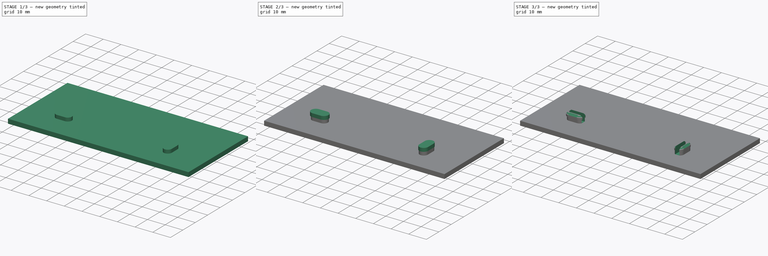
[diagram: build sequence overview — one tinted view per stage of 3, left to right]
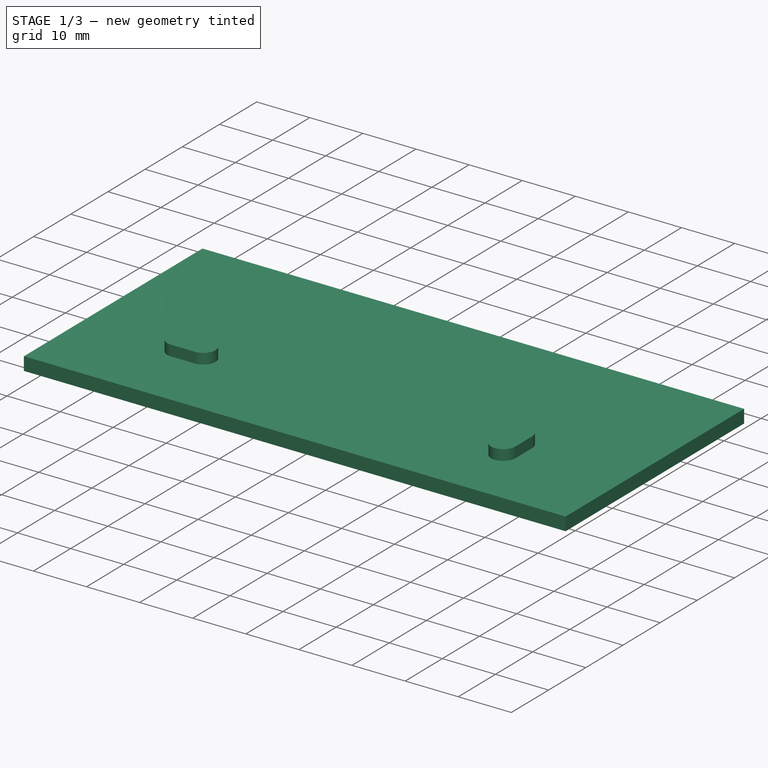
[diagram: stage 1 of 3 — iso view after this stage's code; geometry added in this stage tinted green]
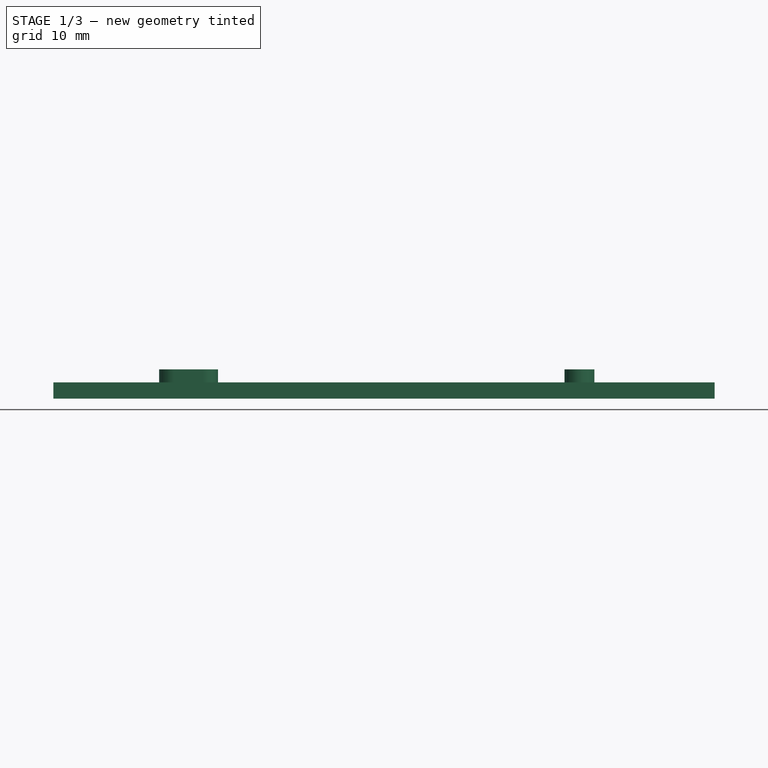
[diagram: stage 1 of 3 — front view after this stage's code; geometry added in this stage tinted green]
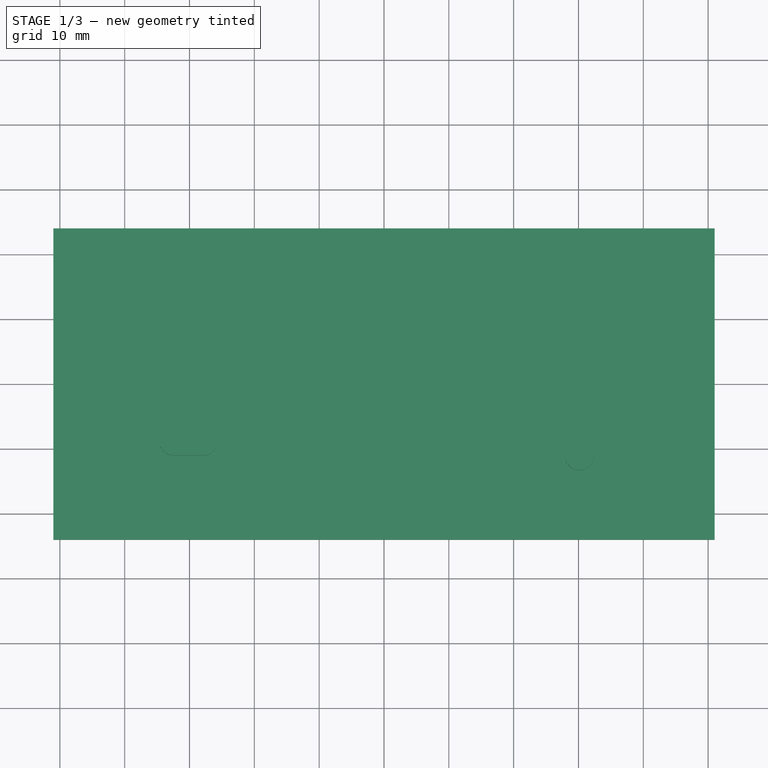
[diagram: stage 1 of 3 — top view after this stage's code; geometry added in this stage tinted green]
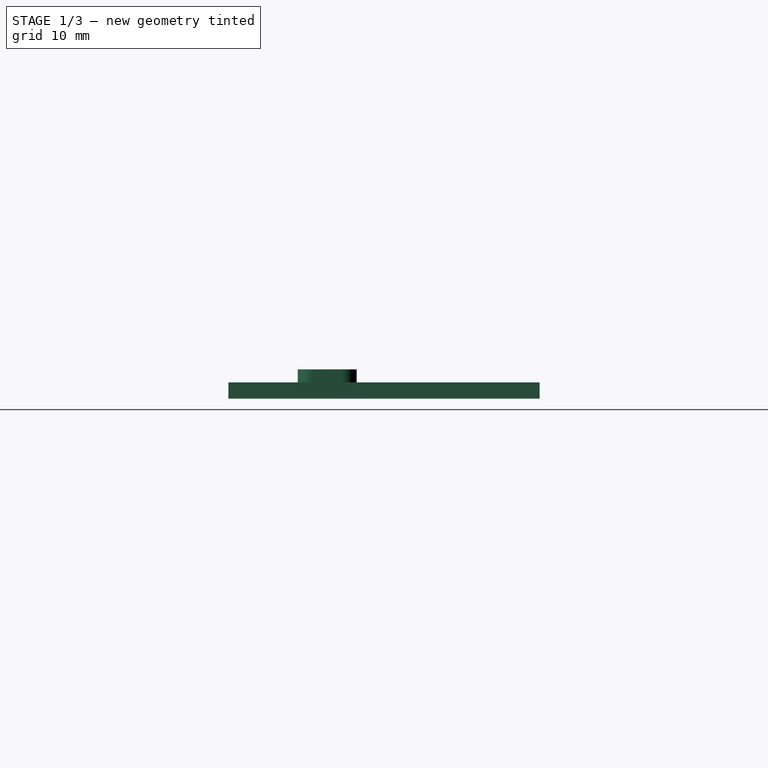
[diagram: stage 1 of 3 — right view after this stage's code; geometry added in this stage tinted green]
FCSTD DOCUMENT  (FreeCAD 1.0R39285 (Git))
Label: VaillantControllerMount
License: All rights reserved
LicenseURL: https://en.wikipedia.org/wiki/All_rights_reserved
objects: Sketcher::SketchObject×5, PartDesign::Pad×3, PartDesign::Pocket×1, PartDesign::Chamfer×1, PartDesign::Body×1
note: 26 computed .brp shape members not serialized (recipe doc carries the construction recipe); baked Part::Feature solids carry a one-line shape summary decoded from their .brp

FEATURE [Sketcher::SketchObject] Sketch
  ArcFitTolerance = 1e-06
  AttachmentSupport = -> [XY_Plane]
  FullyConstrained = true
  MakeInternals = false
  MapMode = 5
  sketch-geometry (5):
    g0: LineSegment StartX=-51 StartY=24 StartZ=0 EndX=-51 EndY=-24 EndZ=0
    g1: LineSegment StartX=-51 StartY=-24 StartZ=0 EndX=51 EndY=-24 EndZ=0
    g2: LineSegment StartX=51 StartY=-24 StartZ=0 EndX=51 EndY=24 EndZ=0
    g3: LineSegment StartX=51 StartY=24 StartZ=0 EndX=-51 EndY=24 EndZ=0
    g4: GeomPoint [constr] X=-1e-16 Y=-1e-16 Z=0
  constraints (12):
    c: Coincident(g0,g1)
    c: Coincident(g1,g2)
    c: Coincident(g2,g3)
    c: Coincident(g3,g0)
    c: Vertical(g0)
    c: Vertical(g2)
    c: Horizontal(g1)
    c: Horizontal(g3)
    c: Symmetric(g2,g0,g4)
    c: Coincident(g4,g-1)
    c: DistanceX(g1,g1) = 102
    c: DistanceY(g2,g2) = 48
FEATURE [PartDesign::Pad] Pad
  Direction = (0,0,1)
  Length = 2.5
  Length2 = 10
  Profile = -> Sketch
  ReferenceAxis = -> Sketch [N_Axis]
  Refine = true
  Suppressed = false
  Type = 0
FEATURE [Sketcher::SketchObject] Sketch001
  ArcFitTolerance = 1e-06
  AttachmentSupport = -> [Pad]
  ExternalGeometry = -> [Pad]
  FullyConstrained = true
  MakeInternals = false
  MapMode = 5
  Placement = pos=(0,0,2.5) rot=(0,0,1;0rad)
  sketch-geometry (11):
    g0: LineSegment [constr] StartX=-51 StartY=-8.75 StartZ=0 EndX=51 EndY=-8.75 EndZ=0
    g1: LineSegment [constr] StartX=-30.15 StartY=24 StartZ=0 EndX=-30.15 EndY=-24 EndZ=0
    g2: LineSegment [constr] StartX=30.15 StartY=24 StartZ=0 EndX=30.15 EndY=-24 EndZ=0
    g3: ArcOfCircle CenterX=-32.395 CenterY=-8.75 CenterZ=0 NormalX=0 NormalY=0 NormalZ=1 AngleXU=0 Radius=2.3 StartAngle=1.5708 EndAngle=4.71239
    g4: ArcOfCircle CenterX=-27.905 CenterY=-8.75 CenterZ=0 NormalX=0 NormalY=0 NormalZ=1 AngleXU=0 Radius=2.3 StartAngle=4.71239 EndAngle=7.85398
    g5: LineSegment StartX=-32.395 StartY=-6.45 StartZ=0 EndX=-27.905 EndY=-6.45 EndZ=0
    g6: LineSegment StartX=-32.395 StartY=-11.05 StartZ=0 EndX=-27.905 EndY=-11.05 EndZ=0
    g7: ArcOfCircle CenterX=30.15 CenterY=-6.505 CenterZ=0 NormalX=0 NormalY=0 NormalZ=1 AngleXU=0 Radius=2.3 StartAngle=1e-16 EndAngle=3.14159
    g8: ArcOfCircle CenterX=30.15 CenterY=-10.995 CenterZ=0 NormalX=0 NormalY=0 NormalZ=1 AngleXU=0 Radius=2.3 StartAngle=3.14159 EndAngle=6.28319
    g9: LineSegment StartX=32.45 StartY=-6.505 StartZ=0 EndX=32.45 EndY=-10.995 EndZ=0
    g10: LineSegment StartX=27.85 StartY=-6.505 StartZ=0 EndX=27.85 EndY=-10.995 EndZ=0
  constraints (30):
    c: Horizontal(g0)
    c: PointOnObject(g0,g-5)
    c: PointOnObject(g0,g-3)
    c: Vertical(g1)
    c: Vertical(g2)
    c: PointOnObject(g1,g-6)
    c: PointOnObject(g2,g-6)
    c: PointOnObject(g2,g-4)
    c: PointOnObject(g1,g-4)
    c: DistanceY(g-4,g0) = 15.25
    c: DistanceX(g-4,g1) = 20.85
    c: DistanceX(g2,g-5) = 20.85
    c: Tangent(g3,g5) = 1.5708
    c: Tangent(g3,g6) = -1.5708
    c: Tangent(g4,g5) = 1.5708
    c: Tangent(g4,g6) = -1.5708
    c: Equal(g3,g4)
    c: Distance(g3,g4) = 4.49
    c: Radius(g3) = 2.3
    c: PointOnObject(g3,g0)
    c: Symmetric(g3,g4,g1)
    c: Tangent(g7,g9) = 1.5708
    c: Tangent(g7,g10) = -1.5708
    c: Tangent(g8,g9) = 1.5708
    c: Tangent(g8,g10) = -1.5708
    c: Equal(g7,g8)
    c: Distance(g7,g8) = 4.49
    c: Radius(g7) = 2.3
    c: PointOnObject(g7,g2)
    c: Symmetric(g7,g8,g0)
FEATURE [PartDesign::Pad] Pad001
  BaseFeature = -> Pad
  Direction = (0,0,1)
  Length = 2
  Length2 = 10
  Profile = -> Sketch001
  ReferenceAxis = -> Sketch001 [N_Axis]
  Refine = true
  Suppressed = false
  Type = 0
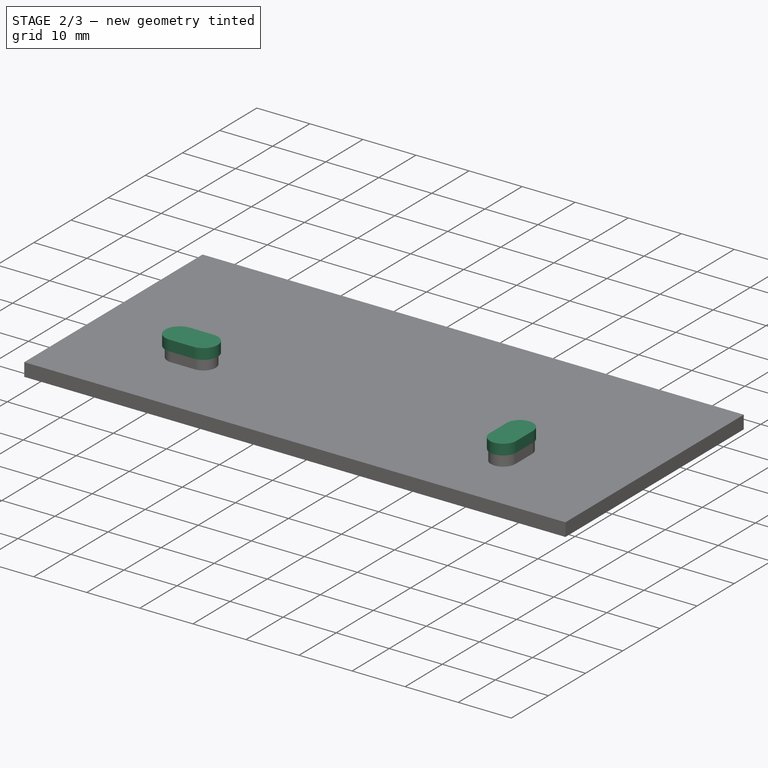
[diagram: stage 2 of 3 — iso view after this stage's code; geometry added in this stage tinted green]
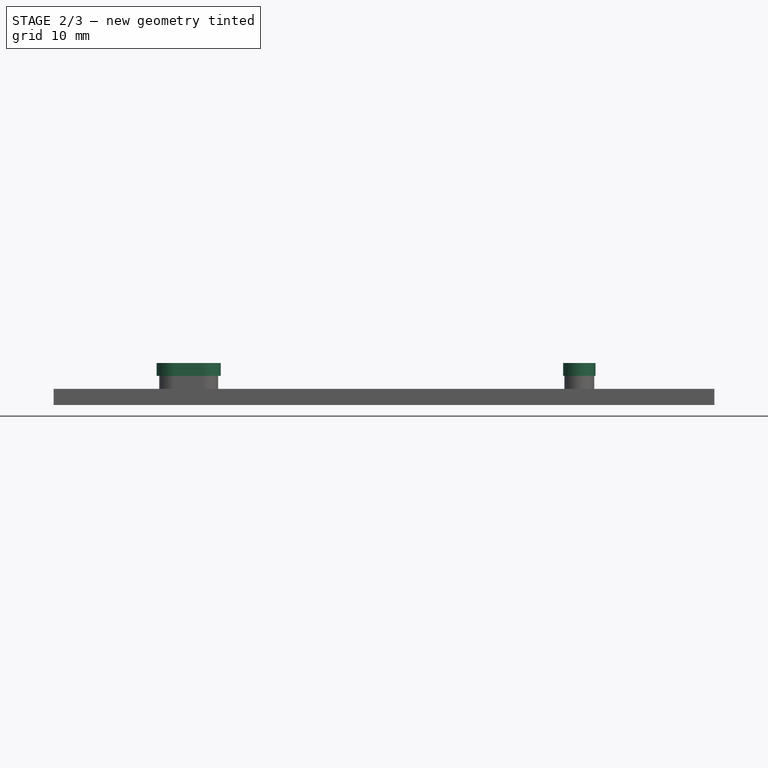
[diagram: stage 2 of 3 — front view after this stage's code; geometry added in this stage tinted green]
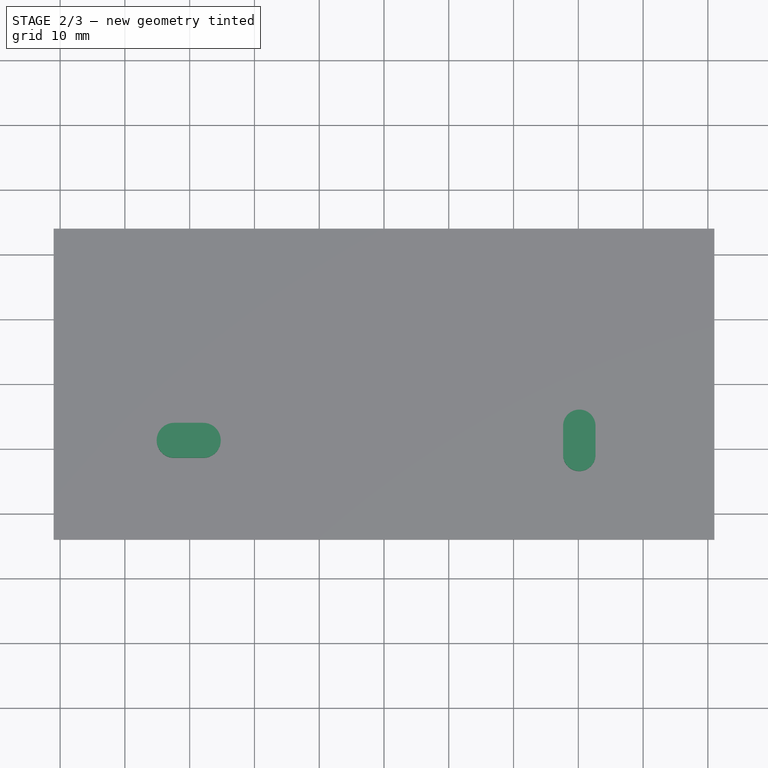
[diagram: stage 2 of 3 — top view after this stage's code; geometry added in this stage tinted green]
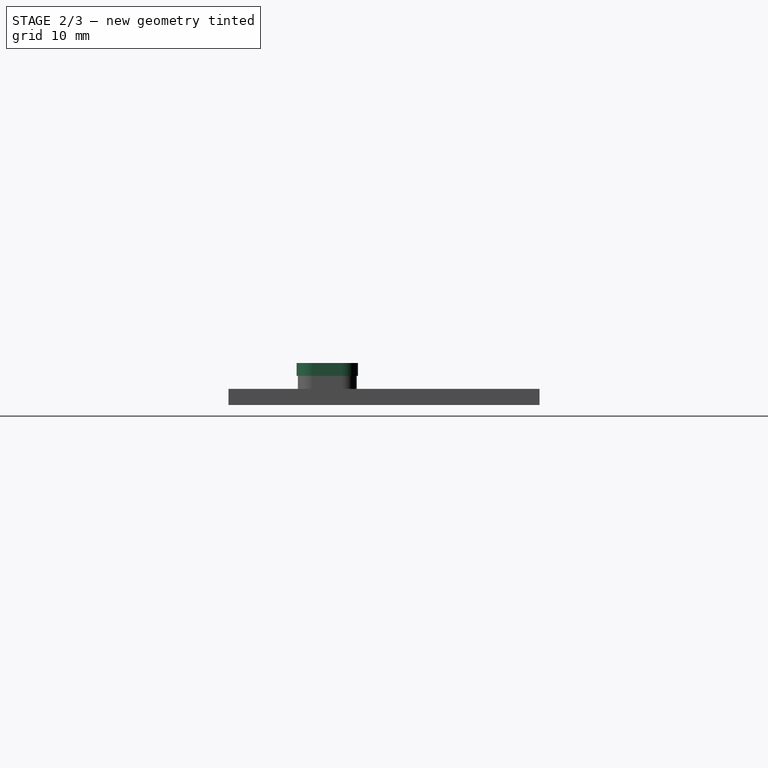
[diagram: stage 2 of 3 — right view after this stage's code; geometry added in this stage tinted green]
FEATURE [Sketcher::SketchObject] Sketch002
  ArcFitTolerance = 1e-06
  AttachmentSupport = -> [Pad001]
  ExternalGeometry = -> [Pad001]
  FullyConstrained = false
  MakeInternals = false
  MapMode = 5
  Placement = pos=(0,0,4.5) rot=(0,0,1;0rad)
  sketch-geometry (8):
    g0: ArcOfCircle CenterX=-32.395 CenterY=-8.75 CenterZ=0 NormalX=0 NormalY=0 NormalZ=1 AngleXU=0 Radius=2.7012 StartAngle=1.5708 EndAngle=4.71239
    g1: ArcOfCircle CenterX=-27.905 CenterY=-8.75 CenterZ=0 NormalX=0 NormalY=0 NormalZ=1 AngleXU=0 Radius=2.7012 StartAngle=4.71239 EndAngle=7.85398
    g2: LineSegment StartX=-32.395 StartY=-6.0488 StartZ=0 EndX=-27.905 EndY=-6.0488 EndZ=0
    g3: LineSegment StartX=-32.395 StartY=-11.4512 StartZ=0 EndX=-27.905 EndY=-11.4512 EndZ=0
    g4: ArcOfCircle CenterX=30.15 CenterY=-6.505 CenterZ=0 NormalX=0 NormalY=0 NormalZ=1 AngleXU=0 Radius=2.5 StartAngle=0 EndAngle=3.14159
    g5: ArcOfCircle CenterX=30.15 CenterY=-10.995 CenterZ=0 NormalX=0 NormalY=0 NormalZ=1 AngleXU=0 Radius=2.5 StartAngle=3.14159 EndAngle=6.28319
    g6: LineSegment StartX=32.65 StartY=-6.505 StartZ=0 EndX=32.65 EndY=-10.995 EndZ=0
    g7: LineSegment StartX=27.65 StartY=-6.505 StartZ=0 EndX=27.65 EndY=-10.995 EndZ=0
  constraints (14):
    c: Tangent(g0,g2) = 1.5708
    c: Tangent(g0,g3) = -1.5708
    c: Tangent(g1,g2) = 1.5708
    c: Tangent(g1,g3) = -1.5708
    c: Equal(g0,g1)
    c: Coincident(g0,g-4)
    c: Coincident(g1,g-6)
    c: Tangent(g4,g6) = 1.5708
    c: Tangent(g4,g7) = -1.5708
    c: Tangent(g5,g6) = 1.5708
    c: Tangent(g5,g7) = -1.5708
    c: Equal(g4,g5)
    c: Coincident(g4,g-8)
    c: Coincident(g5,g-10)
FEATURE [PartDesign::Pad] Pad002
  BaseFeature = -> Pad001
  Direction = (0,0,1)
  Length = 2
  Length2 = 10
  Profile = -> Sketch002
  ReferenceAxis = -> Sketch002 [N_Axis]
  Refine = true
  Suppressed = false
  Type = 0
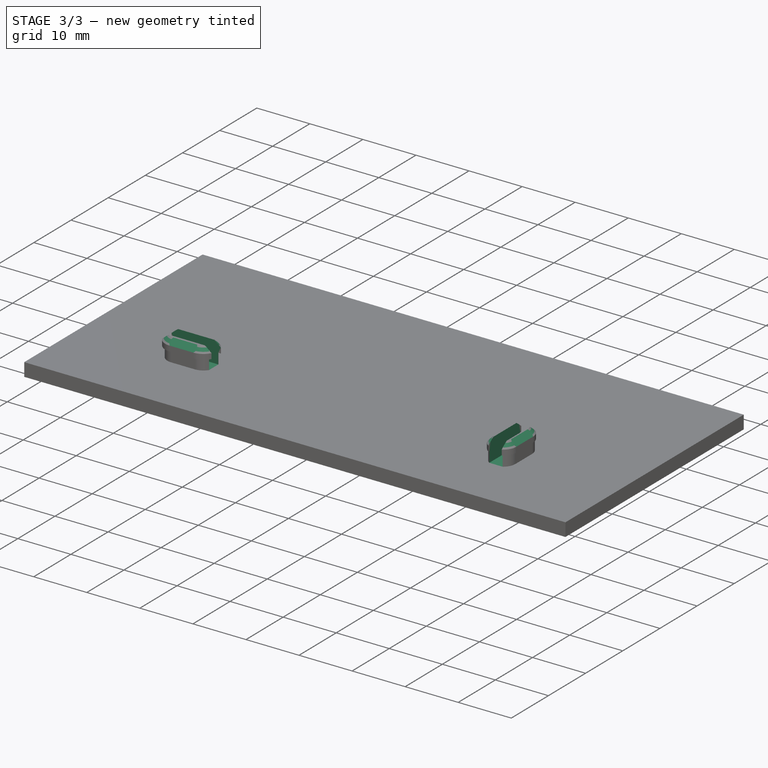
[diagram: stage 3 of 3 — iso view after this stage's code; geometry added in this stage tinted green]
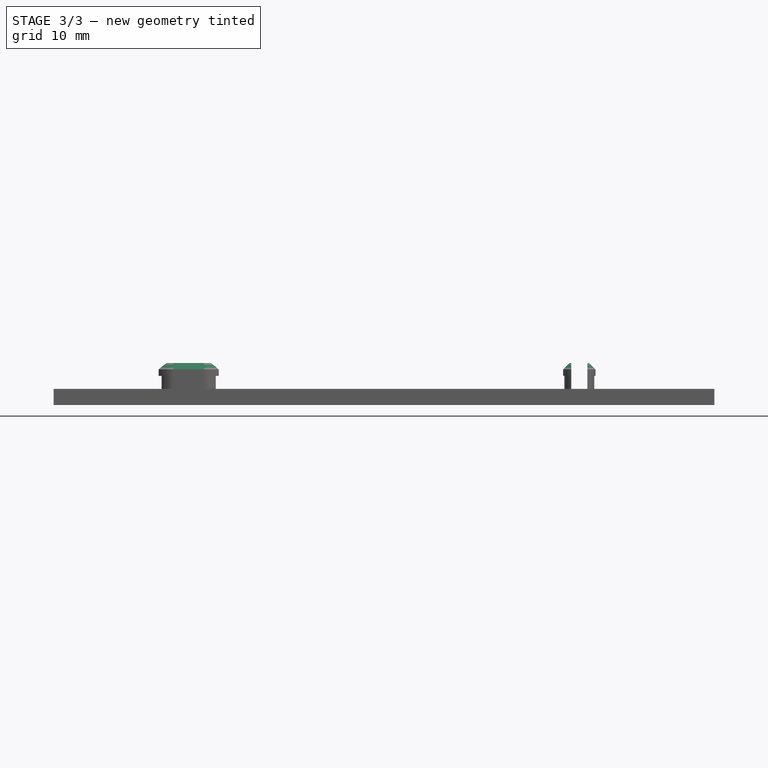
[diagram: stage 3 of 3 — front view after this stage's code; geometry added in this stage tinted green]
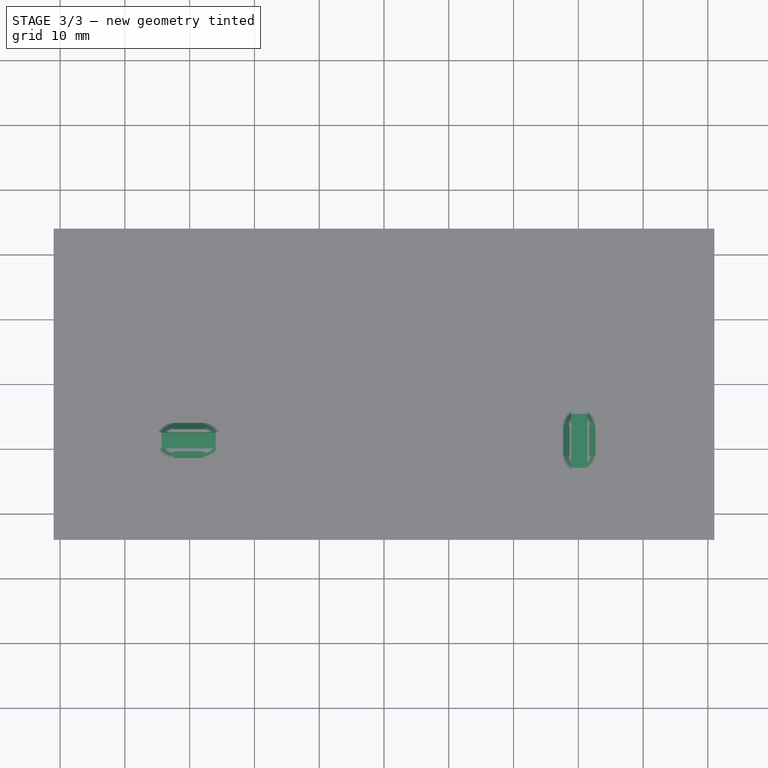
[diagram: stage 3 of 3 — top view after this stage's code; geometry added in this stage tinted green]
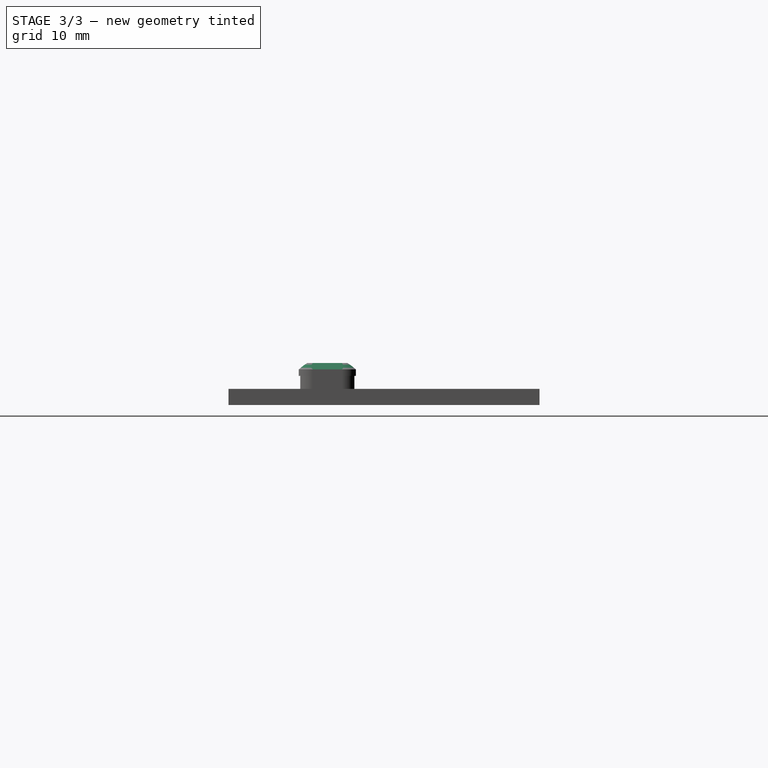
[diagram: stage 3 of 3 — right view after this stage's code; geometry added in this stage tinted green]
FEATURE [Sketcher::SketchObject] Sketch003
  ArcFitTolerance = 1e-06
  AttachmentSupport = -> [Pad002]
  FullyConstrained = true
  MakeInternals = false
  MapMode = 5
  Placement = pos=(0,0,6.5) rot=(0,0,1;0rad)
FEATURE [Sketcher::SketchObject] Sketch004
  ArcFitTolerance = 1e-06
  AttachmentSupport = -> [Pad002]
  ExternalGeometry = -> [Pad002]
  FullyConstrained = true
  MakeInternals = false
  MapMode = 5
  Placement = pos=(0,0,6.5) rot=(0,0,1;0rad)
  sketch-geometry (14):
    g0: LineSegment [constr] StartX=-32.395 StartY=-6.0488 StartZ=0 EndX=-27.905 EndY=-11.4512 EndZ=0
    g1: LineSegment [constr] StartX=-32.395 StartY=-11.4512 StartZ=0 EndX=-27.905 EndY=-6.0488 EndZ=0
    g2: LineSegment StartX=-35.15 StartY=-7.5 StartZ=0 EndX=-35.15 EndY=-10 EndZ=0
    g3: LineSegment StartX=-35.15 StartY=-10 StartZ=0 EndX=-25.15 EndY=-10 EndZ=0
    g4: LineSegment StartX=-25.15 StartY=-10 StartZ=0 EndX=-25.15 EndY=-7.5 EndZ=0
    g5: LineSegment StartX=-25.15 StartY=-7.5 StartZ=0 EndX=-35.15 EndY=-7.5 EndZ=0
    g6: GeomPoint [constr] X=-30.15 Y=-8.75 Z=0
    g7: LineSegment [constr] StartX=27.65 StartY=-6.505 StartZ=0 EndX=32.65 EndY=-10.995 EndZ=0
    g8: LineSegment [constr] StartX=32.65 StartY=-6.505 StartZ=0 EndX=27.65 EndY=-10.995 EndZ=0
    g9: LineSegment StartX=28.9 StartY=-3.75 StartZ=0 EndX=28.9 EndY=-13.75 EndZ=0
    g10: LineSegment StartX=28.9 StartY=-13.75 StartZ=0 EndX=31.4 EndY=-13.75 EndZ=0
    g11: LineSegment StartX=31.4 StartY=-13.75 StartZ=0 EndX=31.4 EndY=-3.75 EndZ=0
    g12: LineSegment StartX=31.4 StartY=-3.75 StartZ=0 EndX=28.9 EndY=-3.75 EndZ=0
    g13: GeomPoint [constr] X=30.15 Y=-8.75 Z=0
  constraints (32):
    c: Coincident(g0,g-4)
    c: Coincident(g0,g-6)
    c: Coincident(g1,g-5)
    c: Coincident(g1,g-6)
    c: Coincident(g2,g3)
    c: Coincident(g3,g4)
    c: Coincident(g4,g5)
    c: Coincident(g5,g2)
    c: Vertical(g2)
    c: Vertical(g4)
    c: Horizontal(g3)
    c: Horizontal(g5)
    c: Symmetric(g4,g2,g6)
    c: Symmetric(g0,g0,g6)
    c: Distance(g2,g2) = 2.5
    c: Distance(g5,g5) = 10
    c: Coincident(g7,g-8)
    c: Coincident(g7,g-10)
    c: Coincident(g8,g-9)
    c: Coincident(g8,g-10)
    c: Coincident(g9,g10)
    c: Coincident(g10,g11)
    c: Coincident(g11,g12)
    c: Coincident(g12,g9)
    c: Vertical(g9)
    c: Vertical(g11)
    c: Horizontal(g10)
    c: Horizontal(g12)
    c: Symmetric(g11,g9,g13)
    c: Symmetric(g8,g8,g13)
    c: DistanceY(g11,g11) = 10
    c: Distance(g10,g10) = 2.5
FEATURE [PartDesign::Pocket] Pocket
  BaseFeature = -> Pad002
  Direction = (0,0,-1)
  Length = 4
  Length2 = 5
  Profile = -> Sketch004
  ReferenceAxis = -> Sketch004 [N_Axis]
  Refine = true
  Suppressed = false
  Type = 0
FEATURE [PartDesign::Chamfer] Chamfer
  Angle = 45
  Base = -> Pocket [Edge86,Edge84,Edge85,Edge64,Edge67,Edge68,Edge48,Edge47,Edge44,Edge105,Edge104,Edge106]
  BaseFeature = -> Pocket
  ChamferType = 0
  FlipDirection = false
  Refine = true
  Size = 1
  Size2 = 1
  SupportTransform = false
  Suppressed = false
  UseAllEdges = false
FEATURE [PartDesign::Body] Body
  AllowCompound = false
  Group = -> [Sketch,Pad,Sketch001,Pad001,Sketch002,Pad002,Sketch003,Sketch004,Pocket,Chamfer]
  Origin = -> Origin
  Tip = -> Chamfer
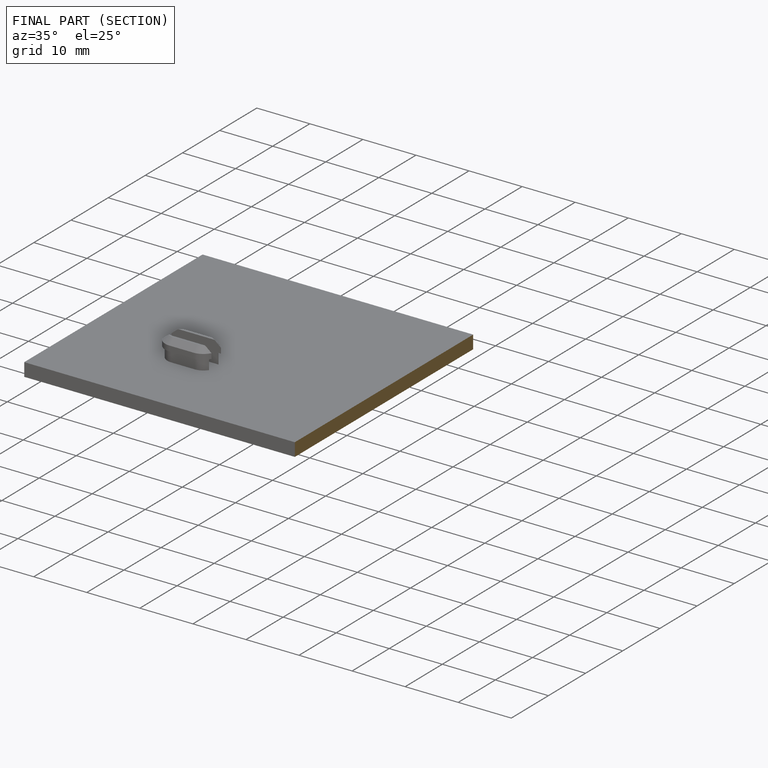
[diagram: finished part — half-section view (interior)]
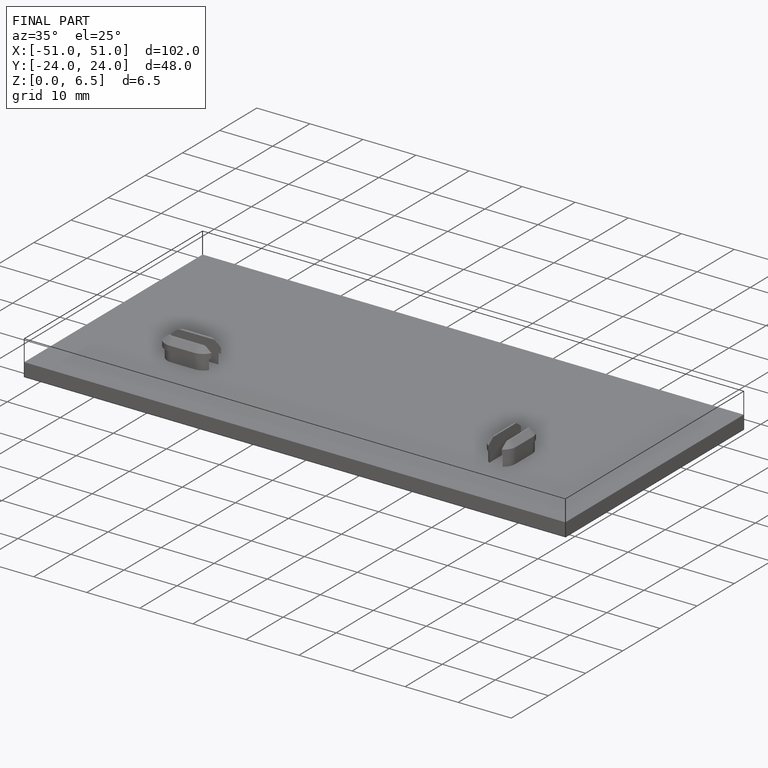
[diagram: finished part — iso view with bounding-box wireframe]
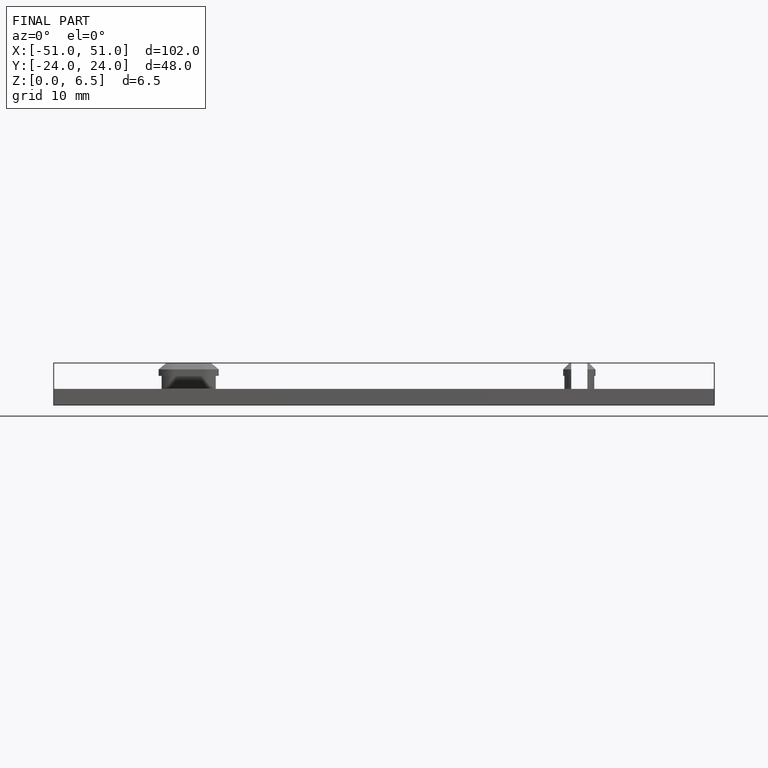
[diagram: finished part — front view with bounding-box wireframe]
